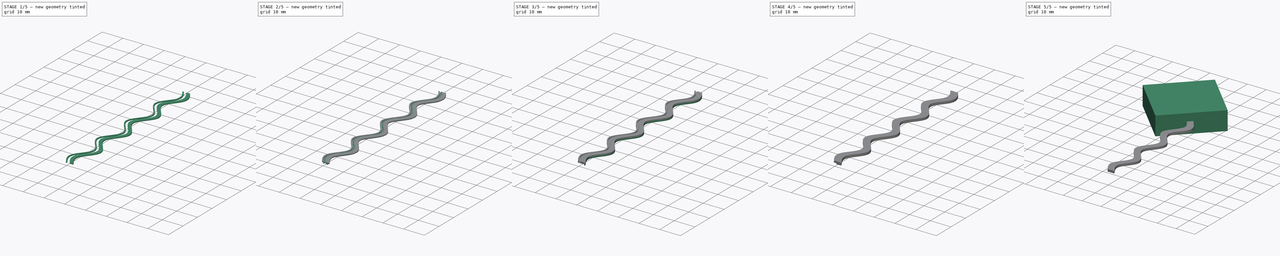
[diagram: build sequence overview — one tinted view per stage of 5, left to right]
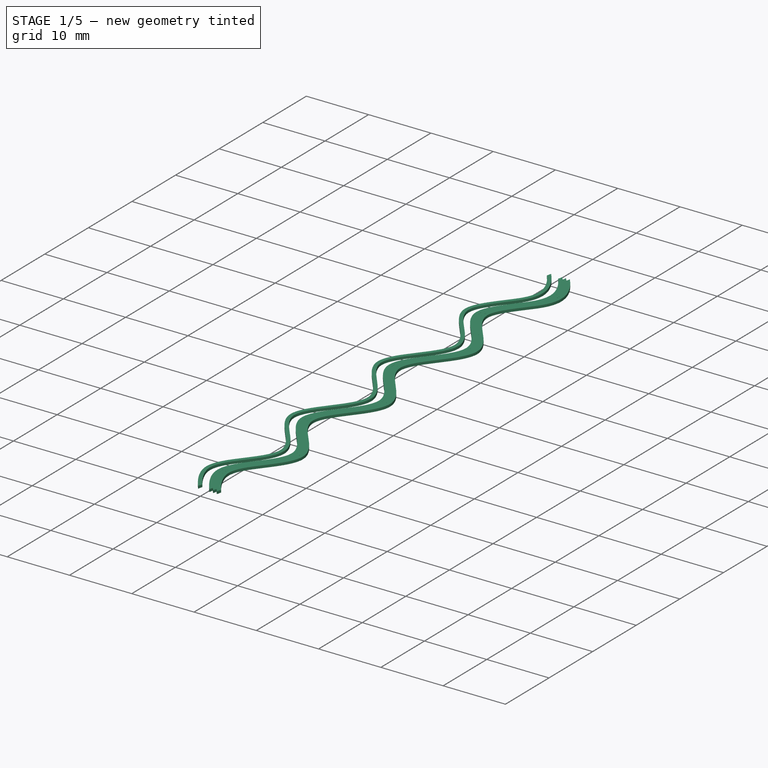
[diagram: stage 1 of 5 — iso view after this stage's code; geometry added in this stage tinted green]
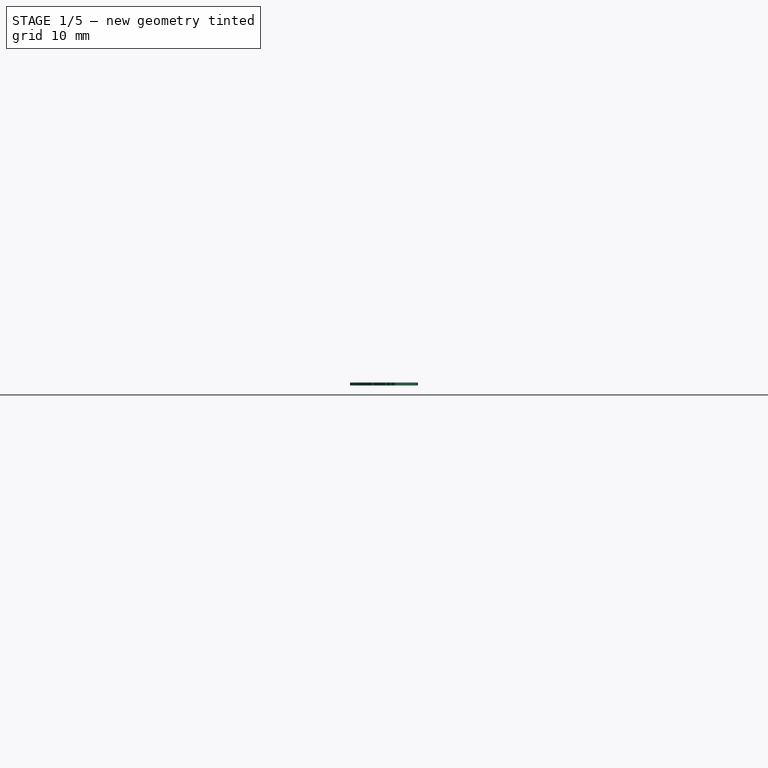
[diagram: stage 1 of 5 — front view after this stage's code; geometry added in this stage tinted green]
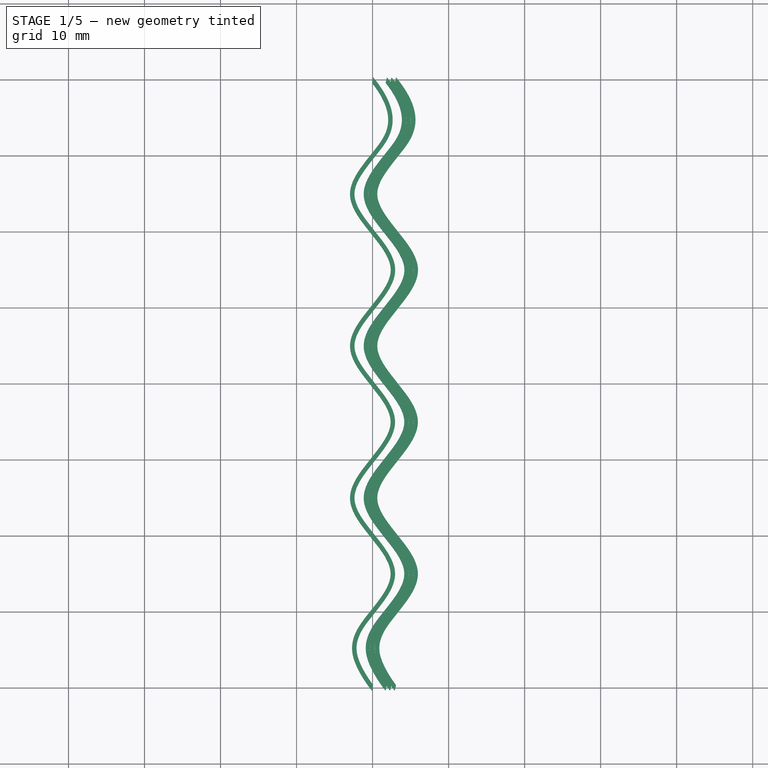
[diagram: stage 1 of 5 — top view after this stage's code; geometry added in this stage tinted green]
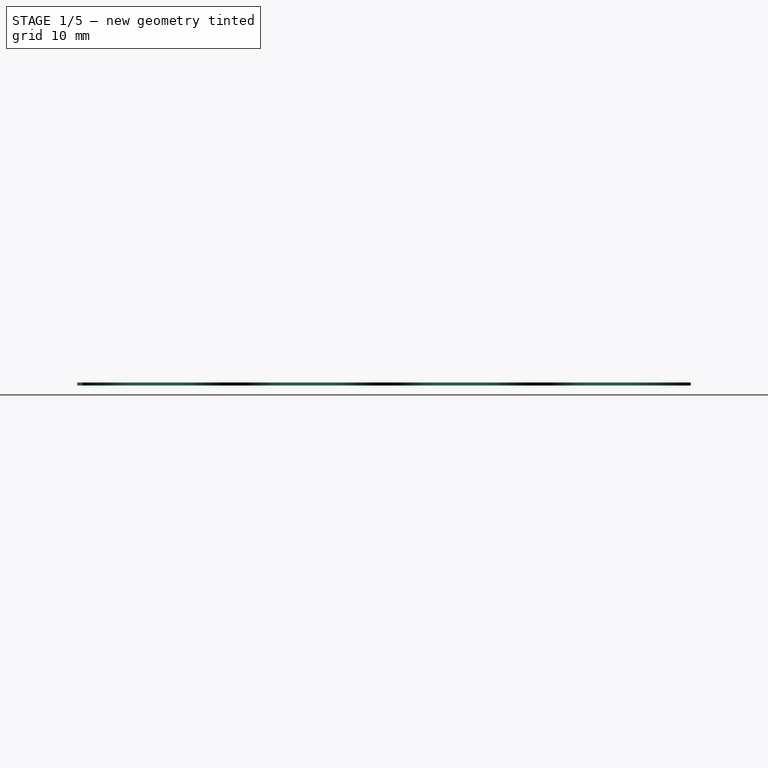
[diagram: stage 1 of 5 — right view after this stage's code; geometry added in this stage tinted green]
FCSTD DOCUMENT  (FreeCAD 0.19R24291 (Git))
Label: Sigmoide
License: All rights reserved
LicenseURL: http://en.wikipedia.org/wiki/All_rights_reserved
objects: Sketcher::SketchObject×36, Part::Sweep×18, Part::Refine×18, Part::Box×1, Part::Compound×1
note: 74 computed .brp shape members not serialized (recipe doc carries the construction recipe); baked Part::Feature solids carry a one-line shape summary decoded from their .brp

FEATURE [Part::Sweep] Sweep013
  Frenet = false
  Placement = pos=(0,0,0.8) rot=(0,0,1;0rad)
  Sections = -> [Sketch026]
  Solid = true
  Spine = -> Sketch035
  Transition = 1
FEATURE [Part::Sweep] Sweep014
  Frenet = false
  Placement = pos=(3,0,0.8) rot=(0,0,1;0rad)
  Sections = -> [Sketch036]
  Solid = true
  Spine = -> Sketch033
  Transition = 1
FEATURE [Part::Sweep] Sweep015
  Frenet = false
  Placement = pos=(1.8,0,0.8) rot=(0,0,1;0rad)
  Sections = -> [Sketch031]
  Solid = true
  Spine = -> Sketch032
  Transition = 1
FEATURE [Part::Sweep] Sweep016
  Frenet = false
  Placement = pos=(2.4,0,0.8) rot=(0,0,1;0rad)
  Sections = -> [Sketch034]
  Solid = true
  Spine = -> Sketch037
  Transition = 1
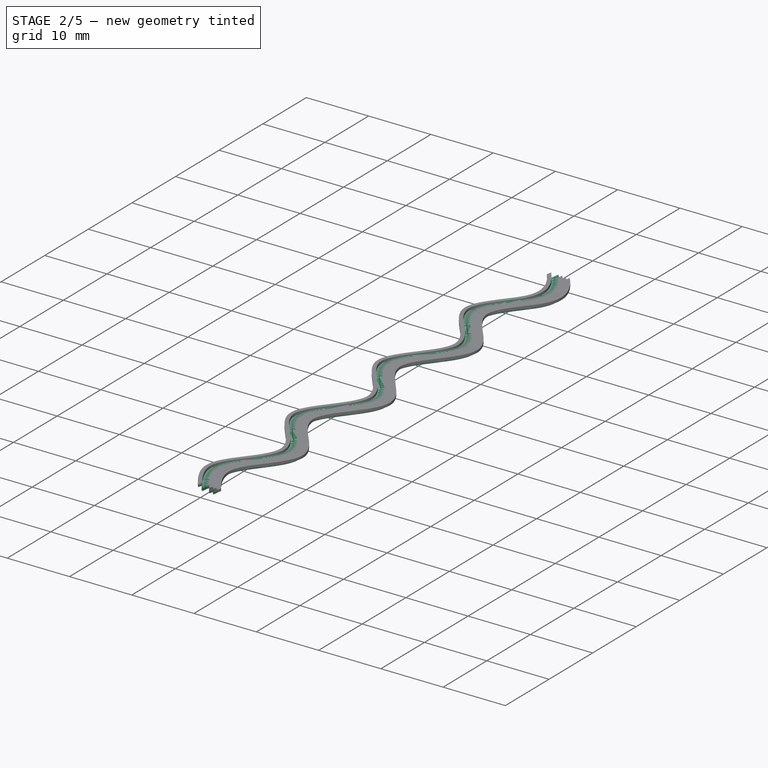
[diagram: stage 2 of 5 — iso view after this stage's code; geometry added in this stage tinted green]
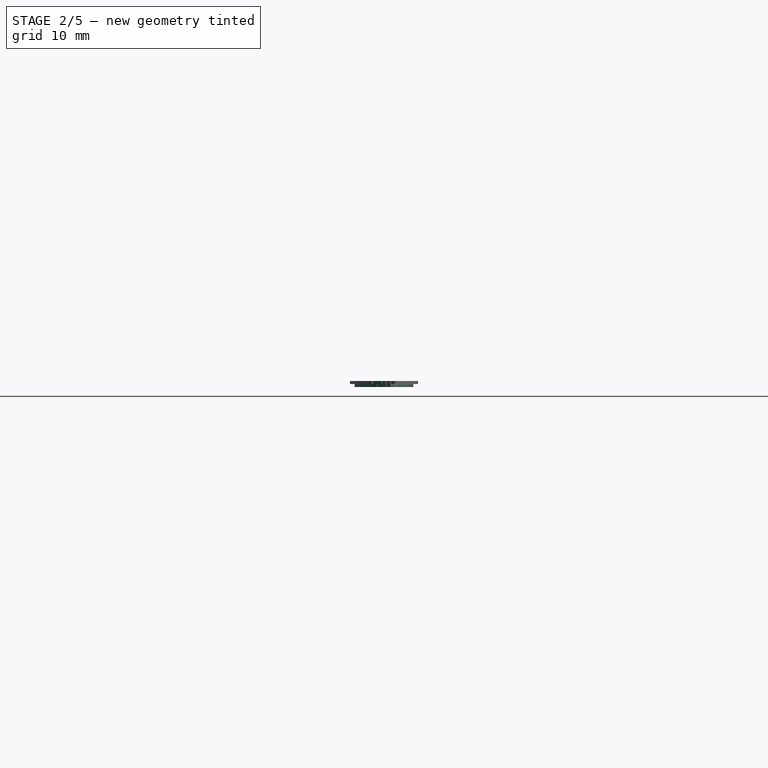
[diagram: stage 2 of 5 — front view after this stage's code; geometry added in this stage tinted green]
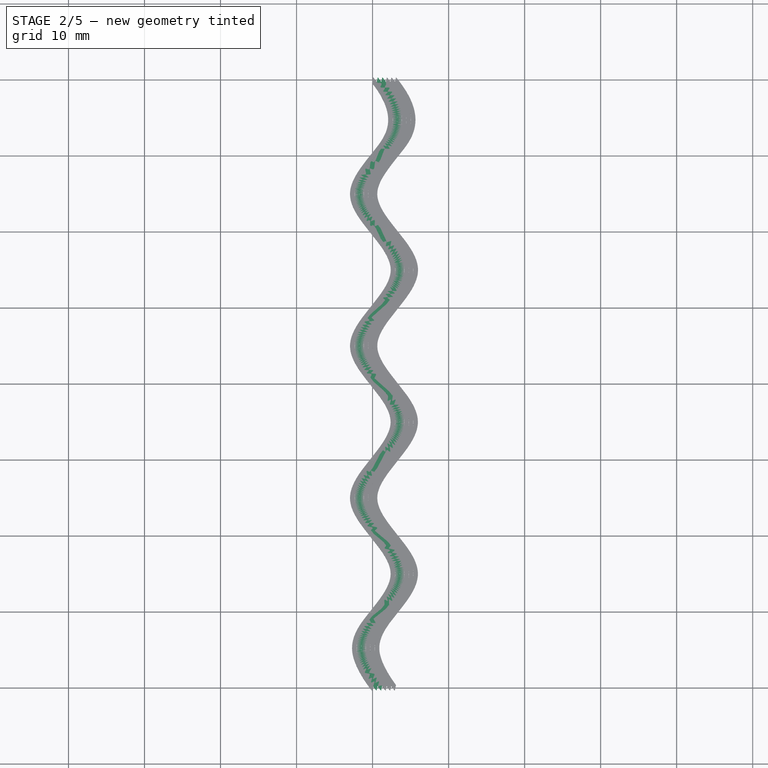
[diagram: stage 2 of 5 — top view after this stage's code; geometry added in this stage tinted green]
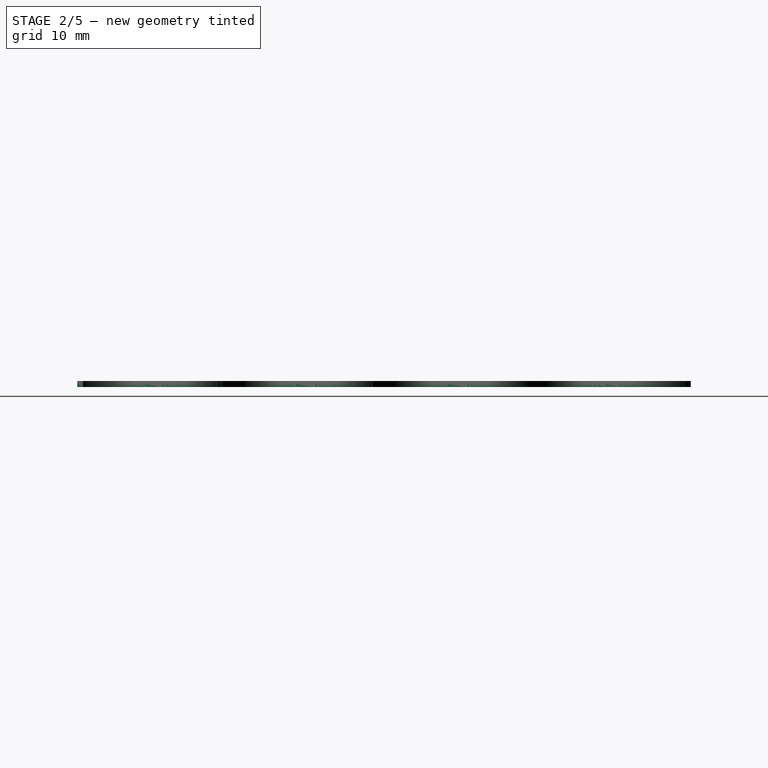
[diagram: stage 2 of 5 — right view after this stage's code; geometry added in this stage tinted green]
FEATURE [Part::Sweep] Sweep009
  Frenet = false
  Placement = pos=(1.8,0,0.4) rot=(0,0,1;0rad)
  Sections = -> [Sketch019]
  Solid = true
  Spine = -> Sketch020
  Transition = 1
FEATURE [Part::Sweep] Sweep010
  Frenet = false
  Placement = pos=(2.4,0,0.4) rot=(0,0,1;0rad)
  Sections = -> [Sketch022]
  Solid = true
  Spine = -> Sketch025
  Transition = 1
FEATURE [Part::Sweep] Sweep011
  Frenet = false
  Placement = pos=(0.6,0,0.4) rot=(0,0,1;0rad)
  Sections = -> [Sketch015]
  Solid = true
  Spine = -> Sketch016
  Transition = 1
FEATURE [Sketcher::SketchObject] Sketch028  label="Sigmoid012"
  FullyConstrained = false
  Placement = pos=(0,30,0) rot=(0,0,1;0rad)
  sketch-geometry (35):
    g0-g17: Circle x18 (B-spline internal-alignment scaffolding for g18; pole/knot coordinates omitted)
    g18: BSplineCurve PolesCount=18 KnotsCount=16 Degree=3 IsPeriodic=0
    g19-g34: GeomPoint x16 (B-spline internal-alignment scaffolding for g18; pole/knot coordinates omitted)
  constraints (29):
    c: PointOnObject(g18,g-2)
    c: Weight(g0) = 1
    c: Equal(g0,g1)
    c: Equal(g0,g2)
    c: PointOnObject(g2,g-2)
    c: Equal(g0,g3)
    c: Equal(g0,g4)
    c: PointOnObject(g4,g-2)
    c: Equal(g0,g5)
    c: Equal(g0,g6)
    c: PointOnObject(g6,g-2)
    c: Equal(g0,g7)
    c: Equal(g0,g8)
    c: PointOnObject(g8,g-2)
    c: Equal(g0,g9)
    c: Equal(g0,g10)
    c: Coincident(g10,g-1)
    c: Equal(g0,g11)
    c: Equal(g0,g12)
    c: PointOnObject(g12,g-2)
    c: Equal(g0,g13)
    c: Equal(g0,g14)
    c: PointOnObject(g14,g-2)
    c: Equal(g0,g15)
    c: Equal(g0,g16)
    c: PointOnObject(g16,g-2)
    c: Equal(g0,g17)
    c: InternalAlignment(g0-g17 -> g18) x18
    c: InternalAlignment(g19-g34 -> g18) x16
FEATURE [Sketcher::SketchObject] Sketch027
  FullyConstrained = false
  MapMode = 3
  Placement = pos=(0,30,0) rot=(1,0,0;1.5708rad)
  Support = -> [Sketch028]
  sketch-geometry (4):
    g0: LineSegment StartX=-0.368605 StartY=0.202548 StartZ=0 EndX=0.387788 EndY=0.202548 EndZ=0
    g1: LineSegment StartX=0.387788 StartY=0.202548 StartZ=0 EndX=0.387788 EndY=-0.196091 EndZ=0
    g2: LineSegment StartX=0.387788 StartY=-0.196091 StartZ=0 EndX=-0.368605 EndY=-0.196091 EndZ=0
    g3: LineSegment StartX=-0.368605 StartY=-0.196091 StartZ=0 EndX=-0.368605 EndY=0.202548 EndZ=0
  constraints (8):
    c: Coincident(g0,g1)
    c: Coincident(g1,g2)
    c: Coincident(g2,g3)
    c: Coincident(g3,g0)
    c: Horizontal(g0)
    c: Horizontal(g2)
    c: Vertical(g1)
    c: Vertical(g3)
FEATURE [Sketcher::SketchObject] Sketch030  label="Sigmoid013"
  FullyConstrained = false
  Placement = pos=(0,30,0) rot=(0,0,1;0rad)
  sketch-geometry (35):
    g0-g17: Circle x18 (B-spline internal-alignment scaffolding for g18; pole/knot coordinates omitted)
    g18: BSplineCurve PolesCount=18 KnotsCount=16 Degree=3 IsPeriodic=0
    g19-g34: GeomPoint x16 (B-spline internal-alignment scaffolding for g18; pole/knot coordinates omitted)
  constraints (29):
    c: PointOnObject(g18,g-2)
    c: Weight(g0) = 1
    c: Equal(g0,g1)
    c: Equal(g0,g2)
    c: PointOnObject(g2,g-2)
    c: Equal(g0,g3)
    c: Equal(g0,g4)
    c: PointOnObject(g4,g-2)
    c: Equal(g0,g5)
    c: Equal(g0,g6)
    c: PointOnObject(g6,g-2)
    c: Equal(g0,g7)
    c: Equal(g0,g8)
    c: PointOnObject(g8,g-2)
    c: Equal(g0,g9)
    c: Equal(g0,g10)
    c: Coincident(g10,g-1)
    c: Equal(g0,g11)
    c: Equal(g0,g12)
    c: PointOnObject(g12,g-2)
    c: Equal(g0,g13)
    c: Equal(g0,g14)
    c: PointOnObject(g14,g-2)
    c: Equal(g0,g15)
    c: Equal(g0,g16)
    c: PointOnObject(g16,g-2)
    c: Equal(g0,g17)
    c: InternalAlignment(g0-g17 -> g18) x18
    c: InternalAlignment(g19-g34 -> g18) x16
FEATURE [Sketcher::SketchObject] Sketch029
  FullyConstrained = false
  MapMode = 3
  Placement = pos=(0,30,0) rot=(1,0,0;1.5708rad)
  Support = -> [Sketch030]
  sketch-geometry (4):
    g0: LineSegment StartX=-0.368605 StartY=0.202548 StartZ=0 EndX=0.387788 EndY=0.202548 EndZ=0
    g1: LineSegment StartX=0.387788 StartY=0.202548 StartZ=0 EndX=0.387788 EndY=-0.196091 EndZ=0
    g2: LineSegment StartX=0.387788 StartY=-0.196091 StartZ=0 EndX=-0.368605 EndY=-0.196091 EndZ=0
    g3: LineSegment StartX=-0.368605 StartY=-0.196091 StartZ=0 EndX=-0.368605 EndY=0.202548 EndZ=0
  constraints (8):
    c: Coincident(g0,g1)
    c: Coincident(g1,g2)
    c: Coincident(g2,g3)
    c: Coincident(g3,g0)
    c: Horizontal(g0)
    c: Horizontal(g2)
    c: Vertical(g1)
    c: Vertical(g3)
FEATURE [Sketcher::SketchObject] Sketch032  label="Sigmoid014"
  FullyConstrained = false
  Placement = pos=(0,30,0) rot=(0,0,1;0rad)
  sketch-geometry (35):
    g0-g17: Circle x18 (B-spline internal-alignment scaffolding for g18; pole/knot coordinates omitted)
    g18: BSplineCurve PolesCount=18 KnotsCount=16 Degree=3 IsPeriodic=0
    g19-g34: GeomPoint x16 (B-spline internal-alignment scaffolding for g18; pole/knot coordinates omitted)
  constraints (29):
    c: PointOnObject(g18,g-2)
    c: Weight(g0) = 1
    c: Equal(g0,g1)
    c: Equal(g0,g2)
    c: PointOnObject(g2,g-2)
    c: Equal(g0,g3)
    c: Equal(g0,g4)
    c: PointOnObject(g4,g-2)
    c: Equal(g0,g5)
    c: Equal(g0,g6)
    c: PointOnObject(g6,g-2)
    c: Equal(g0,g7)
    c: Equal(g0,g8)
    c: PointOnObject(g8,g-2)
    c: Equal(g0,g9)
    c: Equal(g0,g10)
    c: Coincident(g10,g-1)
    c: Equal(g0,g11)
    c: Equal(g0,g12)
    c: PointOnObject(g12,g-2)
    c: Equal(g0,g13)
    c: Equal(g0,g14)
    c: PointOnObject(g14,g-2)
    c: Equal(g0,g15)
    c: Equal(g0,g16)
    c: PointOnObject(g16,g-2)
    c: Equal(g0,g17)
    c: InternalAlignment(g0-g17 -> g18) x18
    c: InternalAlignment(g19-g34 -> g18) x16
FEATURE [Sketcher::SketchObject] Sketch031
  FullyConstrained = false
  MapMode = 3
  Placement = pos=(0,30,0) rot=(1,0,0;1.5708rad)
  Support = -> [Sketch032]
  sketch-geometry (4):
    g0: LineSegment StartX=-0.368605 StartY=0.202548 StartZ=0 EndX=0.387788 EndY=0.202548 EndZ=0
    g1: LineSegment StartX=0.387788 StartY=0.202548 StartZ=0 EndX=0.387788 EndY=-0.196091 EndZ=0
    g2: LineSegment StartX=0.387788 StartY=-0.196091 StartZ=0 EndX=-0.368605 EndY=-0.196091 EndZ=0
    g3: LineSegment StartX=-0.368605 StartY=-0.196091 StartZ=0 EndX=-0.368605 EndY=0.202548 EndZ=0
  constraints (8):
    c: Coincident(g0,g1)
    c: Coincident(g1,g2)
    c: Coincident(g2,g3)
    c: Coincident(g3,g0)
    c: Horizontal(g0)
    c: Horizontal(g2)
    c: Vertical(g1)
    c: Vertical(g3)
FEATURE [Sketcher::SketchObject] Sketch033  label="Sigmoid015"
  FullyConstrained = false
  Placement = pos=(0,30,0) rot=(0,0,1;0rad)
  sketch-geometry (35):
    g0-g17: Circle x18 (B-spline internal-alignment scaffolding for g18; pole/knot coordinates omitted)
    g18: BSplineCurve PolesCount=18 KnotsCount=16 Degree=3 IsPeriodic=0
    g19-g34: GeomPoint x16 (B-spline internal-alignment scaffolding for g18; pole/knot coordinates omitted)
  constraints (29):
    c: PointOnObject(g18,g-2)
    c: Weight(g0) = 1
    c: Equal(g0,g1)
    c: Equal(g0,g2)
    c: PointOnObject(g2,g-2)
    c: Equal(g0,g3)
    c: Equal(g0,g4)
    c: PointOnObject(g4,g-2)
    c: Equal(g0,g5)
    c: Equal(g0,g6)
    c: PointOnObject(g6,g-2)
    c: Equal(g0,g7)
    c: Equal(g0,g8)
    c: PointOnObject(g8,g-2)
    c: Equal(g0,g9)
    c: Equal(g0,g10)
    c: Coincident(g10,g-1)
    c: Equal(g0,g11)
    c: Equal(g0,g12)
    c: PointOnObject(g12,g-2)
    c: Equal(g0,g13)
    c: Equal(g0,g14)
    c: PointOnObject(g14,g-2)
    c: Equal(g0,g15)
    c: Equal(g0,g16)
    c: PointOnObject(g16,g-2)
    c: Equal(g0,g17)
    c: InternalAlignment(g0-g17 -> g18) x18
    c: InternalAlignment(g19-g34 -> g18) x16
FEATURE [Sketcher::SketchObject] Sketch035  label="Sigmoid016"
  FullyConstrained = false
  Placement = pos=(0,30,0) rot=(0,0,1;0rad)
  sketch-geometry (35):
    g0-g17: Circle x18 (B-spline internal-alignment scaffolding for g18; pole/knot coordinates omitted)
    g18: BSplineCurve PolesCount=18 KnotsCount=16 Degree=3 IsPeriodic=0
    g19-g34: GeomPoint x16 (B-spline internal-alignment scaffolding for g18; pole/knot coordinates omitted)
  constraints (29):
    c: PointOnObject(g18,g-2)
    c: Weight(g0) = 1
    c: Equal(g0,g1)
    c: Equal(g0,g2)
    c: PointOnObject(g2,g-2)
    c: Equal(g0,g3)
    c: Equal(g0,g4)
    c: PointOnObject(g4,g-2)
    c: Equal(g0,g5)
    c: Equal(g0,g6)
    c: PointOnObject(g6,g-2)
    c: Equal(g0,g7)
    c: Equal(g0,g8)
    c: PointOnObject(g8,g-2)
    c: Equal(g0,g9)
    c: Equal(g0,g10)
    c: Coincident(g10,g-1)
    c: Equal(g0,g11)
    c: Equal(g0,g12)
    c: PointOnObject(g12,g-2)
    c: Equal(g0,g13)
    c: Equal(g0,g14)
    c: PointOnObject(g14,g-2)
    c: Equal(g0,g15)
    c: Equal(g0,g16)
    c: PointOnObject(g16,g-2)
    c: Equal(g0,g17)
    c: InternalAlignment(g0-g17 -> g18) x18
    c: InternalAlignment(g19-g34 -> g18) x16
FEATURE [Sketcher::SketchObject] Sketch026
  FullyConstrained = false
  MapMode = 3
  Placement = pos=(0,30,0) rot=(1,0,0;1.5708rad)
  Support = -> [Sketch035]
  sketch-geometry (4):
    g0: LineSegment StartX=-0.368605 StartY=0.202548 StartZ=0 EndX=0.387788 EndY=0.202548 EndZ=0
    g1: LineSegment StartX=0.387788 StartY=0.202548 StartZ=0 EndX=0.387788 EndY=-0.196091 EndZ=0
    g2: LineSegment StartX=0.387788 StartY=-0.196091 StartZ=0 EndX=-0.368605 EndY=-0.196091 EndZ=0
    g3: LineSegment StartX=-0.368605 StartY=-0.196091 StartZ=0 EndX=-0.368605 EndY=0.202548 EndZ=0
  constraints (8):
    c: Coincident(g0,g1)
    c: Coincident(g1,g2)
    c: Coincident(g2,g3)
    c: Coincident(g3,g0)
    c: Horizontal(g0)
    c: Horizontal(g2)
    c: Vertical(g1)
    c: Vertical(g3)
FEATURE [Sketcher::SketchObject] Sketch036
  FullyConstrained = false
  MapMode = 3
  Placement = pos=(0,30,0) rot=(1,0,0;1.5708rad)
  Support = -> [Sketch033]
  sketch-geometry (4):
    g0: LineSegment StartX=-0.368605 StartY=0.202548 StartZ=0 EndX=0.387788 EndY=0.202548 EndZ=0
    g1: LineSegment StartX=0.387788 StartY=0.202548 StartZ=0 EndX=0.387788 EndY=-0.196091 EndZ=0
    g2: LineSegment StartX=0.387788 StartY=-0.196091 StartZ=0 EndX=-0.368605 EndY=-0.196091 EndZ=0
    g3: LineSegment StartX=-0.368605 StartY=-0.196091 StartZ=0 EndX=-0.368605 EndY=0.202548 EndZ=0
  constraints (8):
    c: Coincident(g0,g1)
    c: Coincident(g1,g2)
    c: Coincident(g2,g3)
    c: Coincident(g3,g0)
    c: Horizontal(g0)
    c: Horizontal(g2)
    c: Vertical(g1)
    c: Vertical(g3)
FEATURE [Sketcher::SketchObject] Sketch037  label="Sigmoid017"
  FullyConstrained = false
  Placement = pos=(0,30,0) rot=(0,0,1;0rad)
  sketch-geometry (35):
    g0-g17: Circle x18 (B-spline internal-alignment scaffolding for g18; pole/knot coordinates omitted)
    g18: BSplineCurve PolesCount=18 KnotsCount=16 Degree=3 IsPeriodic=0
    g19-g34: GeomPoint x16 (B-spline internal-alignment scaffolding for g18; pole/knot coordinates omitted)
  constraints (29):
    c: PointOnObject(g18,g-2)
    c: Weight(g0) = 1
    c: Equal(g0,g1)
    c: Equal(g0,g2)
    c: PointOnObject(g2,g-2)
    c: Equal(g0,g3)
    c: Equal(g0,g4)
    c: PointOnObject(g4,g-2)
    c: Equal(g0,g5)
    c: Equal(g0,g6)
    c: PointOnObject(g6,g-2)
    c: Equal(g0,g7)
    c: Equal(g0,g8)
    c: PointOnObject(g8,g-2)
    c: Equal(g0,g9)
    c: Equal(g0,g10)
    c: Coincident(g10,g-1)
    c: Equal(g0,g11)
    c: Equal(g0,g12)
    c: PointOnObject(g12,g-2)
    c: Equal(g0,g13)
    c: Equal(g0,g14)
    c: PointOnObject(g14,g-2)
    c: Equal(g0,g15)
    c: Equal(g0,g16)
    c: PointOnObject(g16,g-2)
    c: Equal(g0,g17)
    c: InternalAlignment(g0-g17 -> g18) x18
    c: InternalAlignment(g19-g34 -> g18) x16
FEATURE [Sketcher::SketchObject] Sketch034
  FullyConstrained = false
  MapMode = 3
  Placement = pos=(0,30,0) rot=(1,0,0;1.5708rad)
  Support = -> [Sketch037]
  sketch-geometry (4):
    g0: LineSegment StartX=-0.368605 StartY=0.202548 StartZ=0 EndX=0.387788 EndY=0.202548 EndZ=0
    g1: LineSegment StartX=0.387788 StartY=0.202548 StartZ=0 EndX=0.387788 EndY=-0.196091 EndZ=0
    g2: LineSegment StartX=0.387788 StartY=-0.196091 StartZ=0 EndX=-0.368605 EndY=-0.196091 EndZ=0
    g3: LineSegment StartX=-0.368605 StartY=-0.196091 StartZ=0 EndX=-0.368605 EndY=0.202548 EndZ=0
  constraints (8):
    c: Coincident(g0,g1)
    c: Coincident(g1,g2)
    c: Coincident(g2,g3)
    c: Coincident(g3,g0)
    c: Horizontal(g0)
    c: Horizontal(g2)
    c: Vertical(g1)
    c: Vertical(g3)
FEATURE [Part::Sweep] Sweep012
  Frenet = false
  Placement = pos=(1.2,0,0.8) rot=(0,0,1;0rad)
  Sections = -> [Sketch029]
  Solid = true
  Spine = -> Sketch030
  Transition = 1
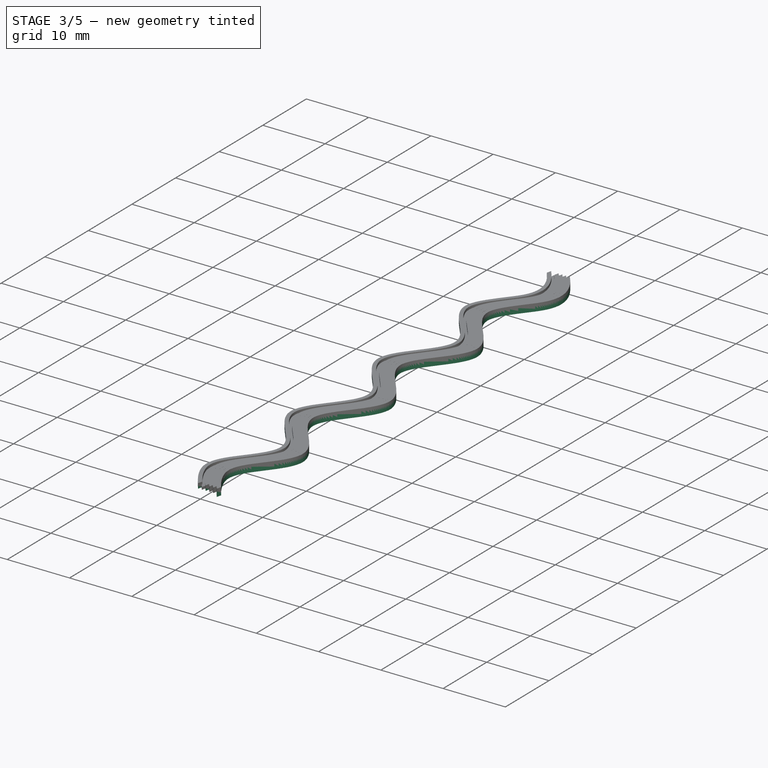
[diagram: stage 3 of 5 — iso view after this stage's code; geometry added in this stage tinted green]
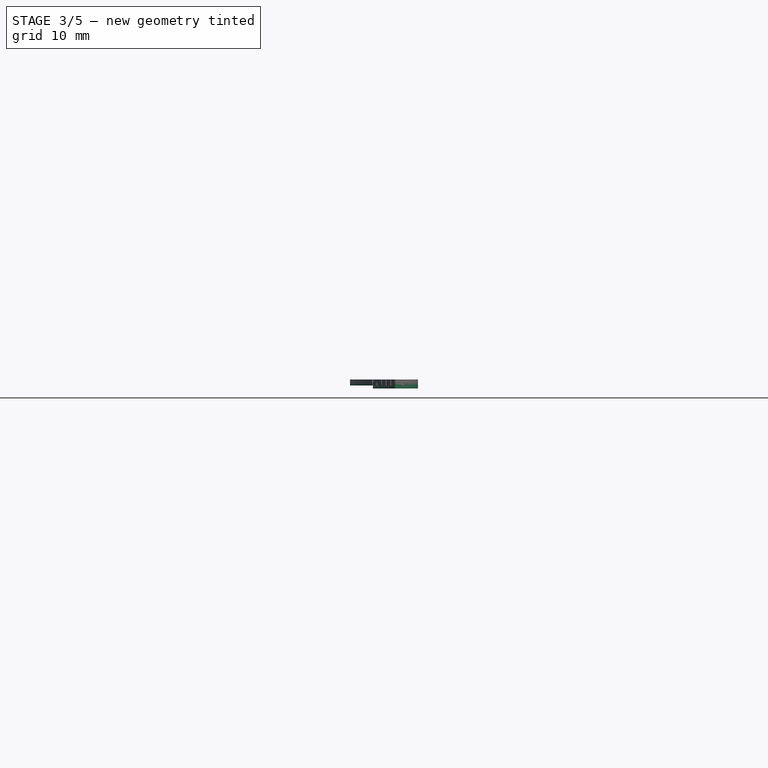
[diagram: stage 3 of 5 — front view after this stage's code; geometry added in this stage tinted green]
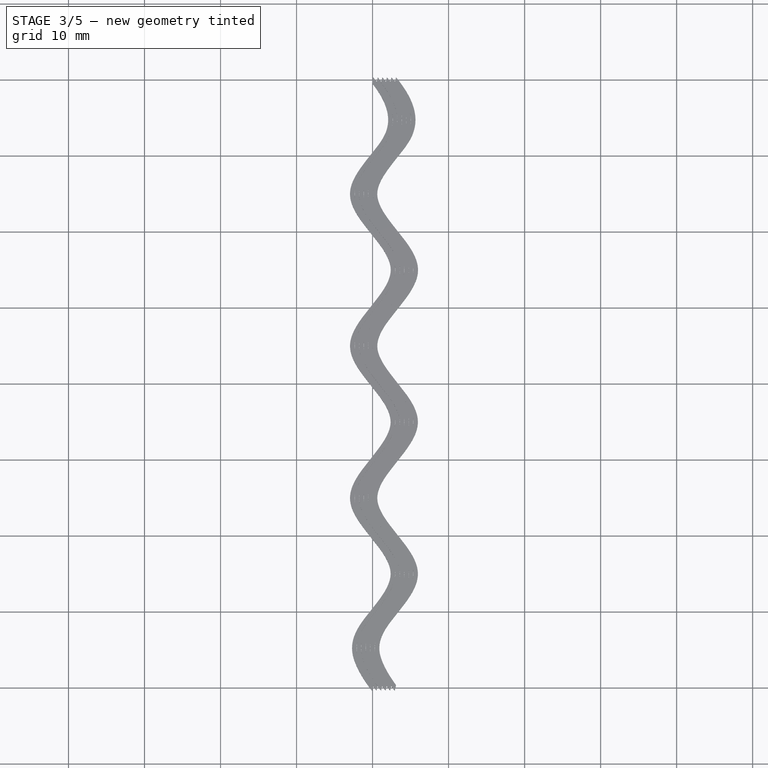
[diagram: stage 3 of 5 — top view after this stage's code; geometry added in this stage tinted green]
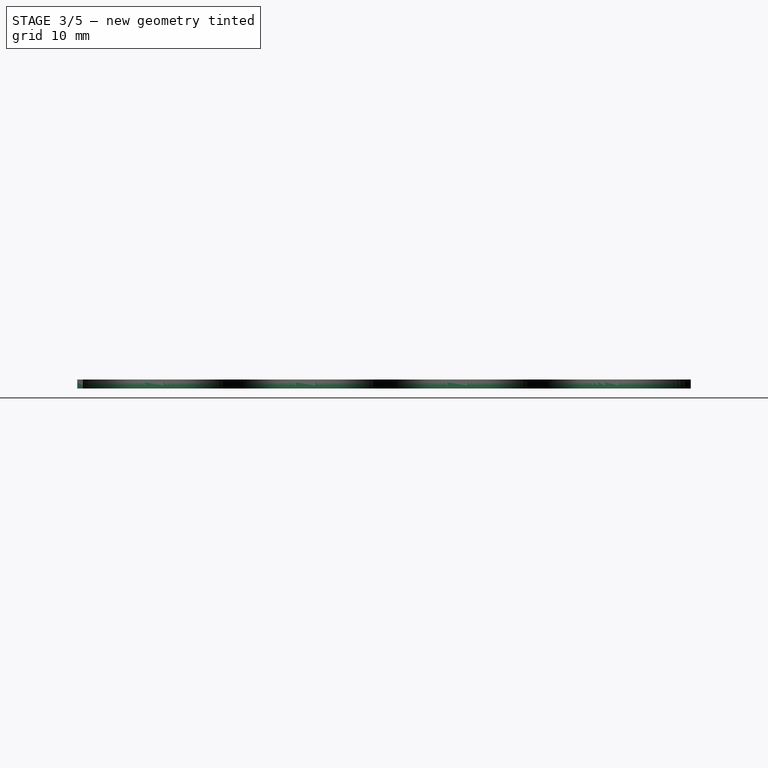
[diagram: stage 3 of 5 — right view after this stage's code; geometry added in this stage tinted green]
FEATURE [Sketcher::SketchObject] Sketch013  label="Sigmoid005"
  FullyConstrained = false
  Placement = pos=(0,30,0) rot=(0,0,1;0rad)
  sketch-geometry (35):
    g0-g17: Circle x18 (B-spline internal-alignment scaffolding for g18; pole/knot coordinates omitted)
    g18: BSplineCurve PolesCount=18 KnotsCount=16 Degree=3 IsPeriodic=0
    g19-g34: GeomPoint x16 (B-spline internal-alignment scaffolding for g18; pole/knot coordinates omitted)
  constraints (29):
    c: PointOnObject(g18,g-2)
    c: Weight(g0) = 1
    c: Equal(g0,g1)
    c: Equal(g0,g2)
    c: PointOnObject(g2,g-2)
    c: Equal(g0,g3)
    c: Equal(g0,g4)
    c: PointOnObject(g4,g-2)
    c: Equal(g0,g5)
    c: Equal(g0,g6)
    c: PointOnObject(g6,g-2)
    c: Equal(g0,g7)
    c: Equal(g0,g8)
    c: PointOnObject(g8,g-2)
    c: Equal(g0,g9)
    c: Equal(g0,g10)
    c: Coincident(g10,g-1)
    c: Equal(g0,g11)
    c: Equal(g0,g12)
    c: PointOnObject(g12,g-2)
    c: Equal(g0,g13)
    c: Equal(g0,g14)
    c: PointOnObject(g14,g-2)
    c: Equal(g0,g15)
    c: Equal(g0,g16)
    c: PointOnObject(g16,g-2)
    c: Equal(g0,g17)
    c: InternalAlignment(g0-g17 -> g18) x18
    c: InternalAlignment(g19-g34 -> g18) x16
FEATURE [Sketcher::SketchObject] Sketch012
  FullyConstrained = false
  MapMode = 3
  Placement = pos=(0,30,0) rot=(1,0,0;1.5708rad)
  Support = -> [Sketch013]
  sketch-geometry (4):
    g0: LineSegment StartX=-0.368605 StartY=0.202548 StartZ=0 EndX=0.387788 EndY=0.202548 EndZ=0
    g1: LineSegment StartX=0.387788 StartY=0.202548 StartZ=0 EndX=0.387788 EndY=-0.196091 EndZ=0
    g2: LineSegment StartX=0.387788 StartY=-0.196091 StartZ=0 EndX=-0.368605 EndY=-0.196091 EndZ=0
    g3: LineSegment StartX=-0.368605 StartY=-0.196091 StartZ=0 EndX=-0.368605 EndY=0.202548 EndZ=0
  constraints (8):
    c: Coincident(g0,g1)
    c: Coincident(g1,g2)
    c: Coincident(g2,g3)
    c: Coincident(g3,g0)
    c: Horizontal(g0)
    c: Horizontal(g2)
    c: Vertical(g1)
    c: Vertical(g3)
FEATURE [Part::Sweep] Sweep005
  Frenet = false
  Placement = pos=(3,0,0) rot=(0,0,1;0rad)
  Sections = -> [Sketch012]
  Solid = true
  Spine = -> Sketch013
  Transition = 1
FEATURE [Sketcher::SketchObject] Sketch016  label="Sigmoid006"
  FullyConstrained = false
  Placement = pos=(0,30,0) rot=(0,0,1;0rad)
  sketch-geometry (35):
    g0-g17: Circle x18 (B-spline internal-alignment scaffolding for g18; pole/knot coordinates omitted)
    g18: BSplineCurve PolesCount=18 KnotsCount=16 Degree=3 IsPeriodic=0
    g19-g34: GeomPoint x16 (B-spline internal-alignment scaffolding for g18; pole/knot coordinates omitted)
  constraints (29):
    c: PointOnObject(g18,g-2)
    c: Weight(g0) = 1
    c: Equal(g0,g1)
    c: Equal(g0,g2)
    c: PointOnObject(g2,g-2)
    c: Equal(g0,g3)
    c: Equal(g0,g4)
    c: PointOnObject(g4,g-2)
    c: Equal(g0,g5)
    c: Equal(g0,g6)
    c: PointOnObject(g6,g-2)
    c: Equal(g0,g7)
    c: Equal(g0,g8)
    c: PointOnObject(g8,g-2)
    c: Equal(g0,g9)
    c: Equal(g0,g10)
    c: Coincident(g10,g-1)
    c: Equal(g0,g11)
    c: Equal(g0,g12)
    c: PointOnObject(g12,g-2)
    c: Equal(g0,g13)
    c: Equal(g0,g14)
    c: PointOnObject(g14,g-2)
    c: Equal(g0,g15)
    c: Equal(g0,g16)
    c: PointOnObject(g16,g-2)
    c: Equal(g0,g17)
    c: InternalAlignment(g0-g17 -> g18) x18
    c: InternalAlignment(g19-g34 -> g18) x16
FEATURE [Sketcher::SketchObject] Sketch015
  FullyConstrained = false
  MapMode = 3
  Placement = pos=(0,30,0) rot=(1,0,0;1.5708rad)
  Support = -> [Sketch016]
  sketch-geometry (4):
    g0: LineSegment StartX=-0.368605 StartY=0.202548 StartZ=0 EndX=0.387788 EndY=0.202548 EndZ=0
    g1: LineSegment StartX=0.387788 StartY=0.202548 StartZ=0 EndX=0.387788 EndY=-0.196091 EndZ=0
    g2: LineSegment StartX=0.387788 StartY=-0.196091 StartZ=0 EndX=-0.368605 EndY=-0.196091 EndZ=0
    g3: LineSegment StartX=-0.368605 StartY=-0.196091 StartZ=0 EndX=-0.368605 EndY=0.202548 EndZ=0
  constraints (8):
    c: Coincident(g0,g1)
    c: Coincident(g1,g2)
    c: Coincident(g2,g3)
    c: Coincident(g3,g0)
    c: Horizontal(g0)
    c: Horizontal(g2)
    c: Vertical(g1)
    c: Vertical(g3)
FEATURE [Sketcher::SketchObject] Sketch018  label="Sigmoid007"
  FullyConstrained = false
  Placement = pos=(0,30,0) rot=(0,0,1;0rad)
  sketch-geometry (35):
    g0-g17: Circle x18 (B-spline internal-alignment scaffolding for g18; pole/knot coordinates omitted)
    g18: BSplineCurve PolesCount=18 KnotsCount=16 Degree=3 IsPeriodic=0
    g19-g34: GeomPoint x16 (B-spline internal-alignment scaffolding for g18; pole/knot coordinates omitted)
  constraints (29):
    c: PointOnObject(g18,g-2)
    c: Weight(g0) = 1
    c: Equal(g0,g1)
    c: Equal(g0,g2)
    c: PointOnObject(g2,g-2)
    c: Equal(g0,g3)
    c: Equal(g0,g4)
    c: PointOnObject(g4,g-2)
    c: Equal(g0,g5)
    c: Equal(g0,g6)
    c: PointOnObject(g6,g-2)
    c: Equal(g0,g7)
    c: Equal(g0,g8)
    c: PointOnObject(g8,g-2)
    c: Equal(g0,g9)
    c: Equal(g0,g10)
    c: Coincident(g10,g-1)
    c: Equal(g0,g11)
    c: Equal(g0,g12)
    c: PointOnObject(g12,g-2)
    c: Equal(g0,g13)
    c: Equal(g0,g14)
    c: PointOnObject(g14,g-2)
    c: Equal(g0,g15)
    c: Equal(g0,g16)
    c: PointOnObject(g16,g-2)
    c: Equal(g0,g17)
    c: InternalAlignment(g0-g17 -> g18) x18
    c: InternalAlignment(g19-g34 -> g18) x16
FEATURE [Sketcher::SketchObject] Sketch017
  FullyConstrained = false
  MapMode = 3
  Placement = pos=(0,30,0) rot=(1,0,0;1.5708rad)
  Support = -> [Sketch018]
  sketch-geometry (4):
    g0: LineSegment StartX=-0.368605 StartY=0.202548 StartZ=0 EndX=0.387788 EndY=0.202548 EndZ=0
    g1: LineSegment StartX=0.387788 StartY=0.202548 StartZ=0 EndX=0.387788 EndY=-0.196091 EndZ=0
    g2: LineSegment StartX=0.387788 StartY=-0.196091 StartZ=0 EndX=-0.368605 EndY=-0.196091 EndZ=0
    g3: LineSegment StartX=-0.368605 StartY=-0.196091 StartZ=0 EndX=-0.368605 EndY=0.202548 EndZ=0
  constraints (8):
    c: Coincident(g0,g1)
    c: Coincident(g1,g2)
    c: Coincident(g2,g3)
    c: Coincident(g3,g0)
    c: Horizontal(g0)
    c: Horizontal(g2)
    c: Vertical(g1)
    c: Vertical(g3)
FEATURE [Sketcher::SketchObject] Sketch020  label="Sigmoid008"
  FullyConstrained = false
  Placement = pos=(0,30,0) rot=(0,0,1;0rad)
  sketch-geometry (35):
    g0-g17: Circle x18 (B-spline internal-alignment scaffolding for g18; pole/knot coordinates omitted)
    g18: BSplineCurve PolesCount=18 KnotsCount=16 Degree=3 IsPeriodic=0
    g19-g34: GeomPoint x16 (B-spline internal-alignment scaffolding for g18; pole/knot coordinates omitted)
  constraints (29):
    c: PointOnObject(g18,g-2)
    c: Weight(g0) = 1
    c: Equal(g0,g1)
    c: Equal(g0,g2)
    c: PointOnObject(g2,g-2)
    c: Equal(g0,g3)
    c: Equal(g0,g4)
    c: PointOnObject(g4,g-2)
    c: Equal(g0,g5)
    c: Equal(g0,g6)
    c: PointOnObject(g6,g-2)
    c: Equal(g0,g7)
    c: Equal(g0,g8)
    c: PointOnObject(g8,g-2)
    c: Equal(g0,g9)
    c: Equal(g0,g10)
    c: Coincident(g10,g-1)
    c: Equal(g0,g11)
    c: Equal(g0,g12)
    c: PointOnObject(g12,g-2)
    c: Equal(g0,g13)
    c: Equal(g0,g14)
    c: PointOnObject(g14,g-2)
    c: Equal(g0,g15)
    c: Equal(g0,g16)
    c: PointOnObject(g16,g-2)
    c: Equal(g0,g17)
    c: InternalAlignment(g0-g17 -> g18) x18
    c: InternalAlignment(g19-g34 -> g18) x16
FEATURE [Sketcher::SketchObject] Sketch019
  FullyConstrained = false
  MapMode = 3
  Placement = pos=(0,30,0) rot=(1,0,0;1.5708rad)
  Support = -> [Sketch020]
  sketch-geometry (4):
    g0: LineSegment StartX=-0.368605 StartY=0.202548 StartZ=0 EndX=0.387788 EndY=0.202548 EndZ=0
    g1: LineSegment StartX=0.387788 StartY=0.202548 StartZ=0 EndX=0.387788 EndY=-0.196091 EndZ=0
    g2: LineSegment StartX=0.387788 StartY=-0.196091 StartZ=0 EndX=-0.368605 EndY=-0.196091 EndZ=0
    g3: LineSegment StartX=-0.368605 StartY=-0.196091 StartZ=0 EndX=-0.368605 EndY=0.202548 EndZ=0
  constraints (8):
    c: Coincident(g0,g1)
    c: Coincident(g1,g2)
    c: Coincident(g2,g3)
    c: Coincident(g3,g0)
    c: Horizontal(g0)
    c: Horizontal(g2)
    c: Vertical(g1)
    c: Vertical(g3)
FEATURE [Sketcher::SketchObject] Sketch021  label="Sigmoid009"
  FullyConstrained = false
  Placement = pos=(0,30,0) rot=(0,0,1;0rad)
  sketch-geometry (35):
    g0-g17: Circle x18 (B-spline internal-alignment scaffolding for g18; pole/knot coordinates omitted)
    g18: BSplineCurve PolesCount=18 KnotsCount=16 Degree=3 IsPeriodic=0
    g19-g34: GeomPoint x16 (B-spline internal-alignment scaffolding for g18; pole/knot coordinates omitted)
  constraints (29):
    c: PointOnObject(g18,g-2)
    c: Weight(g0) = 1
    c: Equal(g0,g1)
    c: Equal(g0,g2)
    c: PointOnObject(g2,g-2)
    c: Equal(g0,g3)
    c: Equal(g0,g4)
    c: PointOnObject(g4,g-2)
    c: Equal(g0,g5)
    c: Equal(g0,g6)
    c: PointOnObject(g6,g-2)
    c: Equal(g0,g7)
    c: Equal(g0,g8)
    c: PointOnObject(g8,g-2)
    c: Equal(g0,g9)
    c: Equal(g0,g10)
    c: Coincident(g10,g-1)
    c: Equal(g0,g11)
    c: Equal(g0,g12)
    c: PointOnObject(g12,g-2)
    c: Equal(g0,g13)
    c: Equal(g0,g14)
    c: PointOnObject(g14,g-2)
    c: Equal(g0,g15)
    c: Equal(g0,g16)
    c: PointOnObject(g16,g-2)
    c: Equal(g0,g17)
    c: InternalAlignment(g0-g17 -> g18) x18
    c: InternalAlignment(g19-g34 -> g18) x16
FEATURE [Sketcher::SketchObject] Sketch023  label="Sigmoid010"
  FullyConstrained = false
  Placement = pos=(0,30,0) rot=(0,0,1;0rad)
  sketch-geometry (35):
    g0-g17: Circle x18 (B-spline internal-alignment scaffolding for g18; pole/knot coordinates omitted)
    g18: BSplineCurve PolesCount=18 KnotsCount=16 Degree=3 IsPeriodic=0
    g19-g34: GeomPoint x16 (B-spline internal-alignment scaffolding for g18; pole/knot coordinates omitted)
  constraints (29):
    c: PointOnObject(g18,g-2)
    c: Weight(g0) = 1
    c: Equal(g0,g1)
    c: Equal(g0,g2)
    c: PointOnObject(g2,g-2)
    c: Equal(g0,g3)
    c: Equal(g0,g4)
    c: PointOnObject(g4,g-2)
    c: Equal(g0,g5)
    c: Equal(g0,g6)
    c: PointOnObject(g6,g-2)
    c: Equal(g0,g7)
    c: Equal(g0,g8)
    c: PointOnObject(g8,g-2)
    c: Equal(g0,g9)
    c: Equal(g0,g10)
    c: Coincident(g10,g-1)
    c: Equal(g0,g11)
    c: Equal(g0,g12)
    c: PointOnObject(g12,g-2)
    c: Equal(g0,g13)
    c: Equal(g0,g14)
    c: PointOnObject(g14,g-2)
    c: Equal(g0,g15)
    c: Equal(g0,g16)
    c: PointOnObject(g16,g-2)
    c: Equal(g0,g17)
    c: InternalAlignment(g0-g17 -> g18) x18
    c: InternalAlignment(g19-g34 -> g18) x16
FEATURE [Sketcher::SketchObject] Sketch014
  FullyConstrained = false
  MapMode = 3
  Placement = pos=(0,30,0) rot=(1,0,0;1.5708rad)
  Support = -> [Sketch023]
  sketch-geometry (4):
    g0: LineSegment StartX=-0.368605 StartY=0.202548 StartZ=0 EndX=0.387788 EndY=0.202548 EndZ=0
    g1: LineSegment StartX=0.387788 StartY=0.202548 StartZ=0 EndX=0.387788 EndY=-0.196091 EndZ=0
    g2: LineSegment StartX=0.387788 StartY=-0.196091 StartZ=0 EndX=-0.368605 EndY=-0.196091 EndZ=0
    g3: LineSegment StartX=-0.368605 StartY=-0.196091 StartZ=0 EndX=-0.368605 EndY=0.202548 EndZ=0
  constraints (8):
    c: Coincident(g0,g1)
    c: Coincident(g1,g2)
    c: Coincident(g2,g3)
    c: Coincident(g3,g0)
    c: Horizontal(g0)
    c: Horizontal(g2)
    c: Vertical(g1)
    c: Vertical(g3)
FEATURE [Sketcher::SketchObject] Sketch024
  FullyConstrained = false
  MapMode = 3
  Placement = pos=(0,30,0) rot=(1,0,0;1.5708rad)
  Support = -> [Sketch021]
  sketch-geometry (4):
    g0: LineSegment StartX=-0.368605 StartY=0.202548 StartZ=0 EndX=0.387788 EndY=0.202548 EndZ=0
    g1: LineSegment StartX=0.387788 StartY=0.202548 StartZ=0 EndX=0.387788 EndY=-0.196091 EndZ=0
    g2: LineSegment StartX=0.387788 StartY=-0.196091 StartZ=0 EndX=-0.368605 EndY=-0.196091 EndZ=0
    g3: LineSegment StartX=-0.368605 StartY=-0.196091 StartZ=0 EndX=-0.368605 EndY=0.202548 EndZ=0
  constraints (8):
    c: Coincident(g0,g1)
    c: Coincident(g1,g2)
    c: Coincident(g2,g3)
    c: Coincident(g3,g0)
    c: Horizontal(g0)
    c: Horizontal(g2)
    c: Vertical(g1)
    c: Vertical(g3)
FEATURE [Sketcher::SketchObject] Sketch025  label="Sigmoid011"
  FullyConstrained = false
  Placement = pos=(0,30,0) rot=(0,0,1;0rad)
  sketch-geometry (35):
    g0-g17: Circle x18 (B-spline internal-alignment scaffolding for g18; pole/knot coordinates omitted)
    g18: BSplineCurve PolesCount=18 KnotsCount=16 Degree=3 IsPeriodic=0
    g19-g34: GeomPoint x16 (B-spline internal-alignment scaffolding for g18; pole/knot coordinates omitted)
  constraints (29):
    c: PointOnObject(g18,g-2)
    c: Weight(g0) = 1
    c: Equal(g0,g1)
    c: Equal(g0,g2)
    c: PointOnObject(g2,g-2)
    c: Equal(g0,g3)
    c: Equal(g0,g4)
    c: PointOnObject(g4,g-2)
    c: Equal(g0,g5)
    c: Equal(g0,g6)
    c: PointOnObject(g6,g-2)
    c: Equal(g0,g7)
    c: Equal(g0,g8)
    c: PointOnObject(g8,g-2)
    c: Equal(g0,g9)
    c: Equal(g0,g10)
    c: Coincident(g10,g-1)
    c: Equal(g0,g11)
    c: Equal(g0,g12)
    c: PointOnObject(g12,g-2)
    c: Equal(g0,g13)
    c: Equal(g0,g14)
    c: PointOnObject(g14,g-2)
    c: Equal(g0,g15)
    c: Equal(g0,g16)
    c: PointOnObject(g16,g-2)
    c: Equal(g0,g17)
    c: InternalAlignment(g0-g17 -> g18) x18
    c: InternalAlignment(g19-g34 -> g18) x16
FEATURE [Sketcher::SketchObject] Sketch022
  FullyConstrained = false
  MapMode = 3
  Placement = pos=(0,30,0) rot=(1,0,0;1.5708rad)
  Support = -> [Sketch025]
  sketch-geometry (4):
    g0: LineSegment StartX=-0.368605 StartY=0.202548 StartZ=0 EndX=0.387788 EndY=0.202548 EndZ=0
    g1: LineSegment StartX=0.387788 StartY=0.202548 StartZ=0 EndX=0.387788 EndY=-0.196091 EndZ=0
    g2: LineSegment StartX=0.387788 StartY=-0.196091 StartZ=0 EndX=-0.368605 EndY=-0.196091 EndZ=0
    g3: LineSegment StartX=-0.368605 StartY=-0.196091 StartZ=0 EndX=-0.368605 EndY=0.202548 EndZ=0
  constraints (8):
    c: Coincident(g0,g1)
    c: Coincident(g1,g2)
    c: Coincident(g2,g3)
    c: Coincident(g3,g0)
    c: Horizontal(g0)
    c: Horizontal(g2)
    c: Vertical(g1)
    c: Vertical(g3)
FEATURE [Part::Sweep] Sweep006
  Frenet = false
  Placement = pos=(1.2,0,0.4) rot=(0,0,1;0rad)
  Sections = -> [Sketch017]
  Solid = true
  Spine = -> Sketch018
  Transition = 1
FEATURE [Part::Sweep] Sweep007
  Frenet = false
  Placement = pos=(0,0,0.4) rot=(0,0,1;0rad)
  Sections = -> [Sketch014]
  Solid = true
  Spine = -> Sketch023
  Transition = 1
FEATURE [Part::Sweep] Sweep008
  Frenet = false
  Placement = pos=(3,0,0.4) rot=(0,0,1;0rad)
  Sections = -> [Sketch024]
  Solid = true
  Spine = -> Sketch021
  Transition = 1
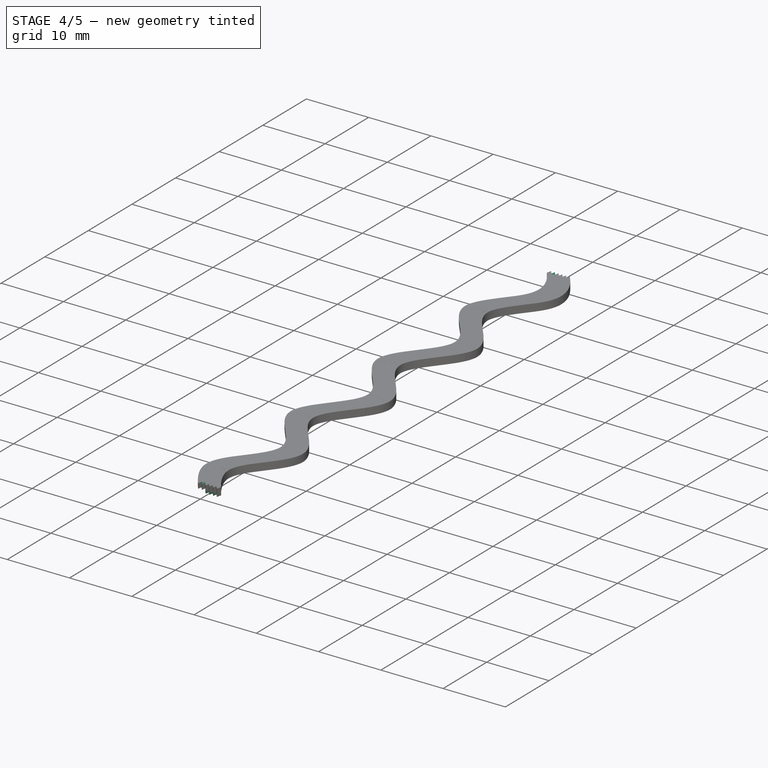
[diagram: stage 4 of 5 — iso view after this stage's code; geometry added in this stage tinted green]
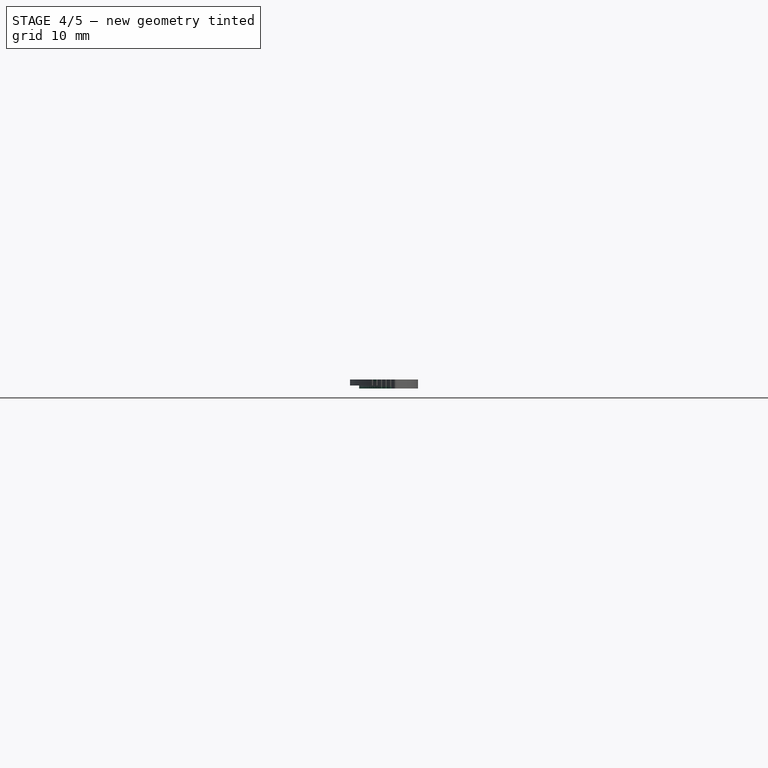
[diagram: stage 4 of 5 — front view after this stage's code; geometry added in this stage tinted green]
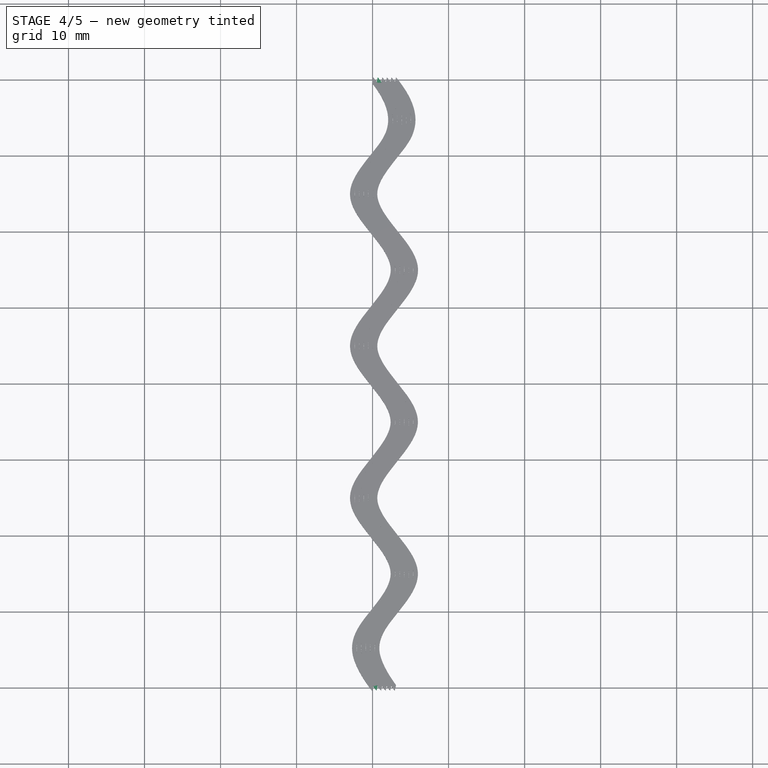
[diagram: stage 4 of 5 — top view after this stage's code; geometry added in this stage tinted green]
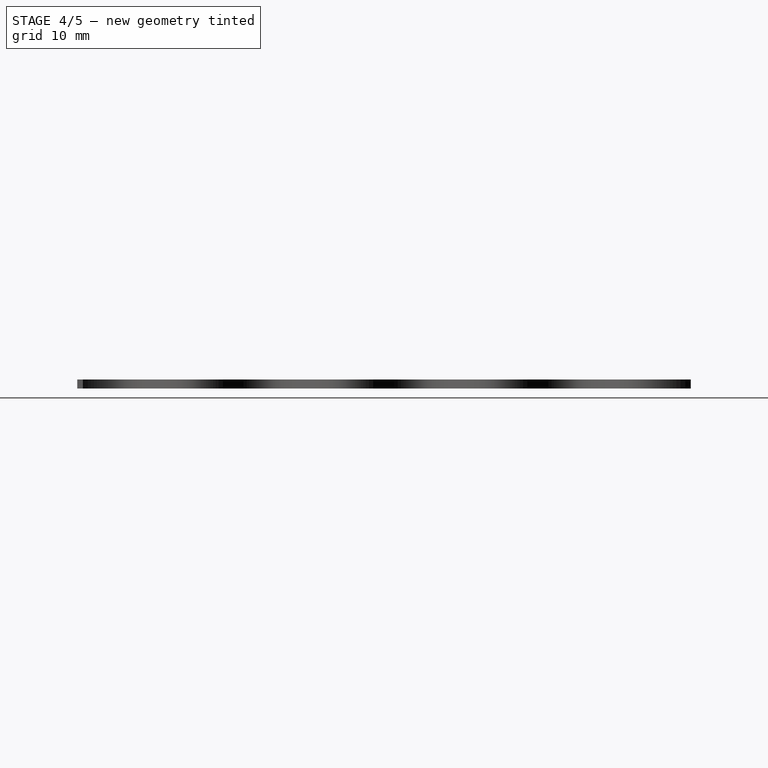
[diagram: stage 4 of 5 — right view after this stage's code; geometry added in this stage tinted green]
FEATURE [Sketcher::SketchObject] Sketch007  label="Sigmoid002"
  FullyConstrained = false
  Placement = pos=(0,30,0) rot=(0,0,1;0rad)
  sketch-geometry (35):
    g0-g17: Circle x18 (B-spline internal-alignment scaffolding for g18; pole/knot coordinates omitted)
    g18: BSplineCurve PolesCount=18 KnotsCount=16 Degree=3 IsPeriodic=0
    g19-g34: GeomPoint x16 (B-spline internal-alignment scaffolding for g18; pole/knot coordinates omitted)
  constraints (29):
    c: PointOnObject(g18,g-2)
    c: Weight(g0) = 1
    c: Equal(g0,g1)
    c: Equal(g0,g2)
    c: PointOnObject(g2,g-2)
    c: Equal(g0,g3)
    c: Equal(g0,g4)
    c: PointOnObject(g4,g-2)
    c: Equal(g0,g5)
    c: Equal(g0,g6)
    c: PointOnObject(g6,g-2)
    c: Equal(g0,g7)
    c: Equal(g0,g8)
    c: PointOnObject(g8,g-2)
    c: Equal(g0,g9)
    c: Equal(g0,g10)
    c: Coincident(g10,g-1)
    c: Equal(g0,g11)
    c: Equal(g0,g12)
    c: PointOnObject(g12,g-2)
    c: Equal(g0,g13)
    c: Equal(g0,g14)
    c: PointOnObject(g14,g-2)
    c: Equal(g0,g15)
    c: Equal(g0,g16)
    c: PointOnObject(g16,g-2)
    c: Equal(g0,g17)
    c: InternalAlignment(g0-g17 -> g18) x18
    c: InternalAlignment(g19-g34 -> g18) x16
FEATURE [Sketcher::SketchObject] Sketch006
  FullyConstrained = false
  MapMode = 3
  Placement = pos=(0,30,0) rot=(1,0,0;1.5708rad)
  Support = -> [Sketch007]
  sketch-geometry (4):
    g0: LineSegment StartX=-0.368605 StartY=0.202548 StartZ=0 EndX=0.387788 EndY=0.202548 EndZ=0
    g1: LineSegment StartX=0.387788 StartY=0.202548 StartZ=0 EndX=0.387788 EndY=-0.196091 EndZ=0
    g2: LineSegment StartX=0.387788 StartY=-0.196091 StartZ=0 EndX=-0.368605 EndY=-0.196091 EndZ=0
    g3: LineSegment StartX=-0.368605 StartY=-0.196091 StartZ=0 EndX=-0.368605 EndY=0.202548 EndZ=0
  constraints (8):
    c: Coincident(g0,g1)
    c: Coincident(g1,g2)
    c: Coincident(g2,g3)
    c: Coincident(g3,g0)
    c: Horizontal(g0)
    c: Horizontal(g2)
    c: Vertical(g1)
    c: Vertical(g3)
FEATURE [Part::Sweep] Sweep002
  Frenet = false
  Placement = pos=(1.2,0,0) rot=(0,0,1;0rad)
  Sections = -> [Sketch006]
  Solid = true
  Spine = -> Sketch007
  Transition = 1
FEATURE [Sketcher::SketchObject] Sketch009  label="Sigmoid003"
  FullyConstrained = false
  Placement = pos=(0,30,0) rot=(0,0,1;0rad)
  sketch-geometry (35):
    g0-g17: Circle x18 (B-spline internal-alignment scaffolding for g18; pole/knot coordinates omitted)
    g18: BSplineCurve PolesCount=18 KnotsCount=16 Degree=3 IsPeriodic=0
    g19-g34: GeomPoint x16 (B-spline internal-alignment scaffolding for g18; pole/knot coordinates omitted)
  constraints (29):
    c: PointOnObject(g18,g-2)
    c: Weight(g0) = 1
    c: Equal(g0,g1)
    c: Equal(g0,g2)
    c: PointOnObject(g2,g-2)
    c: Equal(g0,g3)
    c: Equal(g0,g4)
    c: PointOnObject(g4,g-2)
    c: Equal(g0,g5)
    c: Equal(g0,g6)
    c: PointOnObject(g6,g-2)
    c: Equal(g0,g7)
    c: Equal(g0,g8)
    c: PointOnObject(g8,g-2)
    c: Equal(g0,g9)
    c: Equal(g0,g10)
    c: Coincident(g10,g-1)
    c: Equal(g0,g11)
    c: Equal(g0,g12)
    c: PointOnObject(g12,g-2)
    c: Equal(g0,g13)
    c: Equal(g0,g14)
    c: PointOnObject(g14,g-2)
    c: Equal(g0,g15)
    c: Equal(g0,g16)
    c: PointOnObject(g16,g-2)
    c: Equal(g0,g17)
    c: InternalAlignment(g0-g17 -> g18) x18
    c: InternalAlignment(g19-g34 -> g18) x16
FEATURE [Sketcher::SketchObject] Sketch008
  FullyConstrained = false
  MapMode = 3
  Placement = pos=(0,30,0) rot=(1,0,0;1.5708rad)
  Support = -> [Sketch009]
  sketch-geometry (4):
    g0: LineSegment StartX=-0.368605 StartY=0.202548 StartZ=0 EndX=0.387788 EndY=0.202548 EndZ=0
    g1: LineSegment StartX=0.387788 StartY=0.202548 StartZ=0 EndX=0.387788 EndY=-0.196091 EndZ=0
    g2: LineSegment StartX=0.387788 StartY=-0.196091 StartZ=0 EndX=-0.368605 EndY=-0.196091 EndZ=0
    g3: LineSegment StartX=-0.368605 StartY=-0.196091 StartZ=0 EndX=-0.368605 EndY=0.202548 EndZ=0
  constraints (8):
    c: Coincident(g0,g1)
    c: Coincident(g1,g2)
    c: Coincident(g2,g3)
    c: Coincident(g3,g0)
    c: Horizontal(g0)
    c: Horizontal(g2)
    c: Vertical(g1)
    c: Vertical(g3)
FEATURE [Part::Sweep] Sweep003
  Frenet = false
  Placement = pos=(1.8,0,0) rot=(0,0,1;0rad)
  Sections = -> [Sketch008]
  Solid = true
  Spine = -> Sketch009
  Transition = 1
FEATURE [Sketcher::SketchObject] Sketch011  label="Sigmoid004"
  FullyConstrained = false
  Placement = pos=(0,30,0) rot=(0,0,1;0rad)
  sketch-geometry (35):
    g0-g17: Circle x18 (B-spline internal-alignment scaffolding for g18; pole/knot coordinates omitted)
    g18: BSplineCurve PolesCount=18 KnotsCount=16 Degree=3 IsPeriodic=0
    g19-g34: GeomPoint x16 (B-spline internal-alignment scaffolding for g18; pole/knot coordinates omitted)
  constraints (29):
    c: PointOnObject(g18,g-2)
    c: Weight(g0) = 1
    c: Equal(g0,g1)
    c: Equal(g0,g2)
    c: PointOnObject(g2,g-2)
    c: Equal(g0,g3)
    c: Equal(g0,g4)
    c: PointOnObject(g4,g-2)
    c: Equal(g0,g5)
    c: Equal(g0,g6)
    c: PointOnObject(g6,g-2)
    c: Equal(g0,g7)
    c: Equal(g0,g8)
    c: PointOnObject(g8,g-2)
    c: Equal(g0,g9)
    c: Equal(g0,g10)
    c: Coincident(g10,g-1)
    c: Equal(g0,g11)
    c: Equal(g0,g12)
    c: PointOnObject(g12,g-2)
    c: Equal(g0,g13)
    c: Equal(g0,g14)
    c: PointOnObject(g14,g-2)
    c: Equal(g0,g15)
    c: Equal(g0,g16)
    c: PointOnObject(g16,g-2)
    c: Equal(g0,g17)
    c: InternalAlignment(g0-g17 -> g18) x18
    c: InternalAlignment(g19-g34 -> g18) x16
FEATURE [Sketcher::SketchObject] Sketch010
  FullyConstrained = false
  MapMode = 3
  Placement = pos=(0,30,0) rot=(1,0,0;1.5708rad)
  Support = -> [Sketch011]
  sketch-geometry (4):
    g0: LineSegment StartX=-0.368605 StartY=0.202548 StartZ=0 EndX=0.387788 EndY=0.202548 EndZ=0
    g1: LineSegment StartX=0.387788 StartY=0.202548 StartZ=0 EndX=0.387788 EndY=-0.196091 EndZ=0
    g2: LineSegment StartX=0.387788 StartY=-0.196091 StartZ=0 EndX=-0.368605 EndY=-0.196091 EndZ=0
    g3: LineSegment StartX=-0.368605 StartY=-0.196091 StartZ=0 EndX=-0.368605 EndY=0.202548 EndZ=0
  constraints (8):
    c: Coincident(g0,g1)
    c: Coincident(g1,g2)
    c: Coincident(g2,g3)
    c: Coincident(g3,g0)
    c: Horizontal(g0)
    c: Horizontal(g2)
    c: Vertical(g1)
    c: Vertical(g3)
FEATURE [Part::Sweep] Sweep004
  Frenet = false
  Placement = pos=(2.4,0,0) rot=(0,0,1;0rad)
  Sections = -> [Sketch010]
  Solid = true
  Spine = -> Sketch011
  Transition = 1
FEATURE [Part::Sweep] Sweep017
  Frenet = false
  Placement = pos=(0.6,0,0.8) rot=(0,0,1;0rad)
  Sections = -> [Sketch027]
  Solid = true
  Spine = -> Sketch028
  Transition = 1
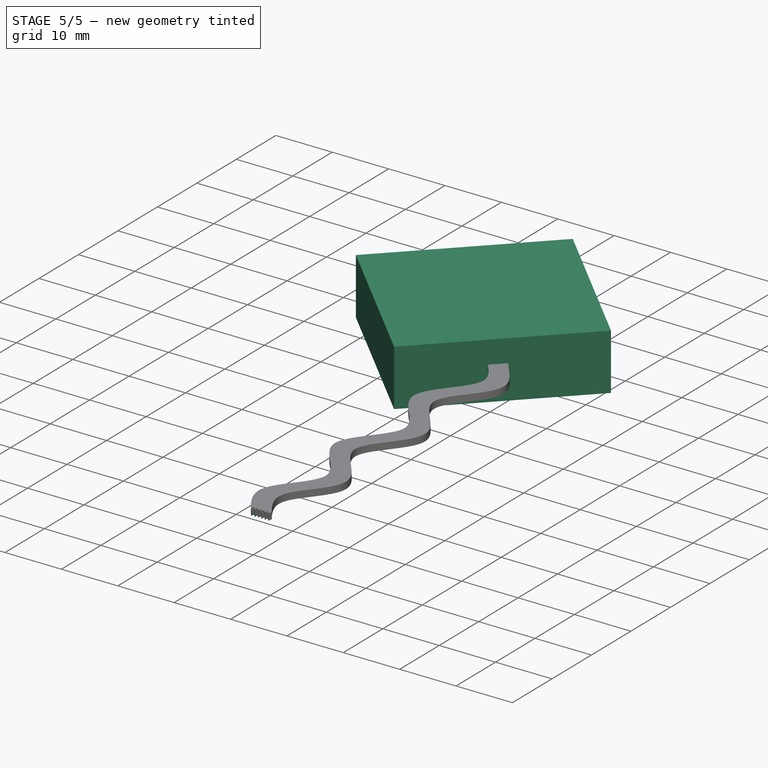
[diagram: stage 5 of 5 — iso view after this stage's code; geometry added in this stage tinted green]
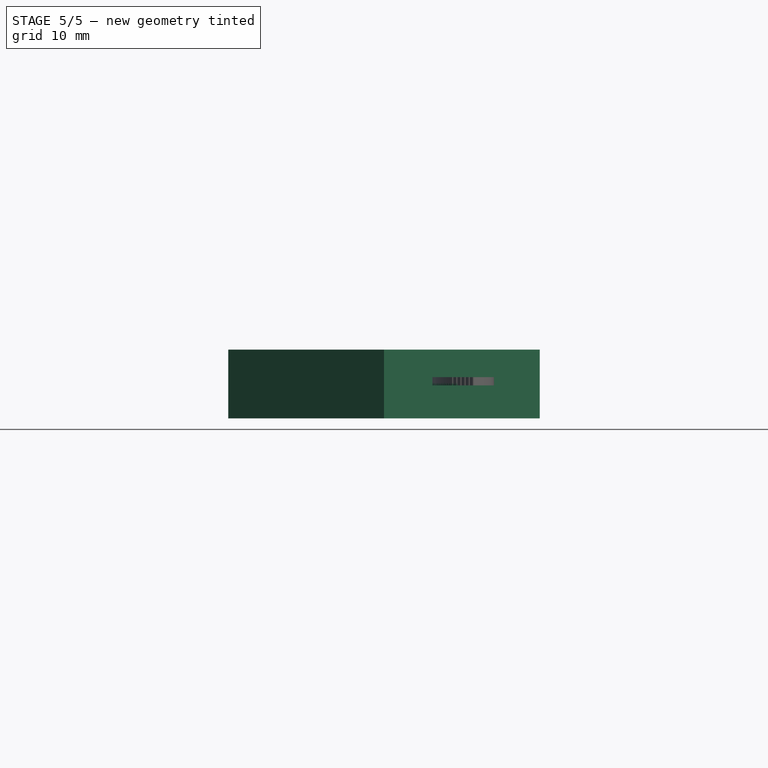
[diagram: stage 5 of 5 — front view after this stage's code; geometry added in this stage tinted green]
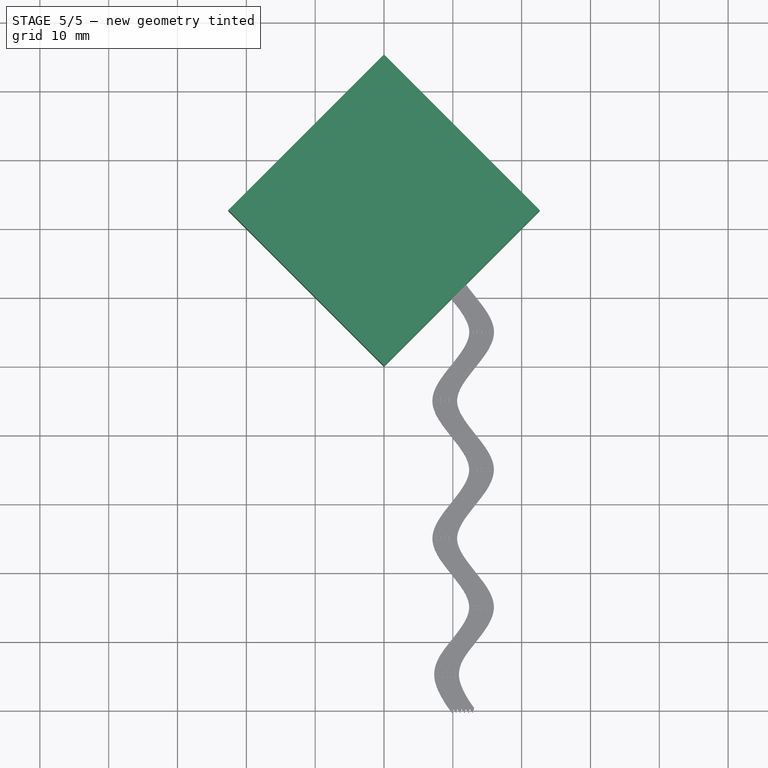
[diagram: stage 5 of 5 — top view after this stage's code; geometry added in this stage tinted green]
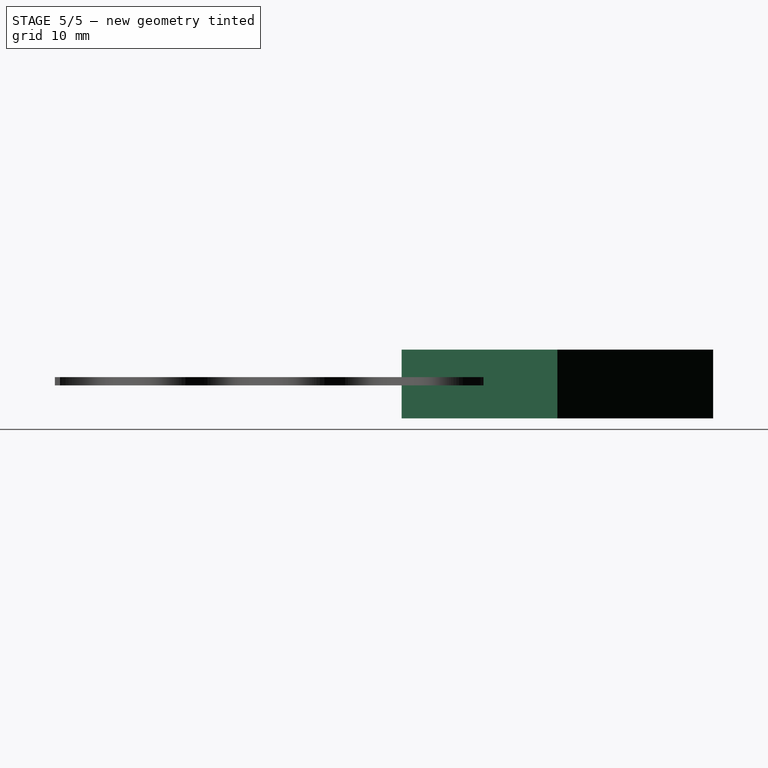
[diagram: stage 5 of 5 — right view after this stage's code; geometry added in this stage tinted green]
FEATURE [Sketcher::SketchObject] Sketch  label="Sigmoid"
  FullyConstrained = false
  Placement = pos=(0,30,0) rot=(0,0,1;0rad)
  sketch-geometry (35):
    g0-g17: Circle x18 (B-spline internal-alignment scaffolding for g18; pole/knot coordinates omitted)
    g18: BSplineCurve PolesCount=18 KnotsCount=16 Degree=3 IsPeriodic=0
    g19-g34: GeomPoint x16 (B-spline internal-alignment scaffolding for g18; pole/knot coordinates omitted)
  constraints (29):
    c: PointOnObject(g18,g-2)
    c: Weight(g0) = 1
    c: Equal(g0,g1)
    c: Equal(g0,g2)
    c: PointOnObject(g2,g-2)
    c: Equal(g0,g3)
    c: Equal(g0,g4)
    c: PointOnObject(g4,g-2)
    c: Equal(g0,g5)
    c: Equal(g0,g6)
    c: PointOnObject(g6,g-2)
    c: Equal(g0,g7)
    c: Equal(g0,g8)
    c: PointOnObject(g8,g-2)
    c: Equal(g0,g9)
    c: Equal(g0,g10)
    c: Coincident(g10,g-1)
    c: Equal(g0,g11)
    c: Equal(g0,g12)
    c: PointOnObject(g12,g-2)
    c: Equal(g0,g13)
    c: Equal(g0,g14)
    c: PointOnObject(g14,g-2)
    c: Equal(g0,g15)
    c: Equal(g0,g16)
    c: PointOnObject(g16,g-2)
    c: Equal(g0,g17)
    c: InternalAlignment(g0-g17 -> g18) x18
    c: InternalAlignment(g19-g34 -> g18) x16
FEATURE [Sketcher::SketchObject] Sketch003
  FullyConstrained = false
  MapMode = 3
  Placement = pos=(0,30,0) rot=(1,0,0;1.5708rad)
  Support = -> [Sketch]
  sketch-geometry (4):
    g0: LineSegment StartX=-0.368605 StartY=0.202548 StartZ=0 EndX=0.387788 EndY=0.202548 EndZ=0
    g1: LineSegment StartX=0.387788 StartY=0.202548 StartZ=0 EndX=0.387788 EndY=-0.196091 EndZ=0
    g2: LineSegment StartX=0.387788 StartY=-0.196091 StartZ=0 EndX=-0.368605 EndY=-0.196091 EndZ=0
    g3: LineSegment StartX=-0.368605 StartY=-0.196091 StartZ=0 EndX=-0.368605 EndY=0.202548 EndZ=0
  constraints (8):
    c: Coincident(g0,g1)
    c: Coincident(g1,g2)
    c: Coincident(g2,g3)
    c: Coincident(g3,g0)
    c: Horizontal(g0)
    c: Horizontal(g2)
    c: Vertical(g1)
    c: Vertical(g3)
FEATURE [Part::Sweep] Sweep
  Frenet = false
  Sections = -> [Sketch003]
  Solid = true
  Spine = -> Sketch
  Transition = 1
FEATURE [Sketcher::SketchObject] Sketch005  label="Sigmoid001"
  FullyConstrained = false
  Placement = pos=(0,30,0) rot=(0,0,1;0rad)
  sketch-geometry (35):
    g0-g17: Circle x18 (B-spline internal-alignment scaffolding for g18; pole/knot coordinates omitted)
    g18: BSplineCurve PolesCount=18 KnotsCount=16 Degree=3 IsPeriodic=0
    g19-g34: GeomPoint x16 (B-spline internal-alignment scaffolding for g18; pole/knot coordinates omitted)
  constraints (29):
    c: PointOnObject(g18,g-2)
    c: Weight(g0) = 1
    c: Equal(g0,g1)
    c: Equal(g0,g2)
    c: PointOnObject(g2,g-2)
    c: Equal(g0,g3)
    c: Equal(g0,g4)
    c: PointOnObject(g4,g-2)
    c: Equal(g0,g5)
    c: Equal(g0,g6)
    c: PointOnObject(g6,g-2)
    c: Equal(g0,g7)
    c: Equal(g0,g8)
    c: PointOnObject(g8,g-2)
    c: Equal(g0,g9)
    c: Equal(g0,g10)
    c: Coincident(g10,g-1)
    c: Equal(g0,g11)
    c: Equal(g0,g12)
    c: PointOnObject(g12,g-2)
    c: Equal(g0,g13)
    c: Equal(g0,g14)
    c: PointOnObject(g14,g-2)
    c: Equal(g0,g15)
    c: Equal(g0,g16)
    c: PointOnObject(g16,g-2)
    c: Equal(g0,g17)
    c: InternalAlignment(g0-g17 -> g18) x18
    c: InternalAlignment(g19-g34 -> g18) x16
FEATURE [Sketcher::SketchObject] Sketch004
  FullyConstrained = false
  MapMode = 3
  Placement = pos=(0,30,0) rot=(1,0,0;1.5708rad)
  Support = -> [Sketch005]
  sketch-geometry (4):
    g0: LineSegment StartX=-0.368605 StartY=0.202548 StartZ=0 EndX=0.387788 EndY=0.202548 EndZ=0
    g1: LineSegment StartX=0.387788 StartY=0.202548 StartZ=0 EndX=0.387788 EndY=-0.196091 EndZ=0
    g2: LineSegment StartX=0.387788 StartY=-0.196091 StartZ=0 EndX=-0.368605 EndY=-0.196091 EndZ=0
    g3: LineSegment StartX=-0.368605 StartY=-0.196091 StartZ=0 EndX=-0.368605 EndY=0.202548 EndZ=0
  constraints (8):
    c: Coincident(g0,g1)
    c: Coincident(g1,g2)
    c: Coincident(g2,g3)
    c: Coincident(g3,g0)
    c: Horizontal(g0)
    c: Horizontal(g2)
    c: Vertical(g1)
    c: Vertical(g3)
FEATURE [Part::Sweep] Sweep001
  Frenet = false
  Placement = pos=(0.6,0,0) rot=(0,0,1;0rad)
  Sections = -> [Sketch004]
  Solid = true
  Spine = -> Sketch005
  Transition = 1
FEATURE [Part::Refine] Sweep018
  Source = -> Sweep
FEATURE [Part::Refine] Sweep001001
  Source = -> Sweep001
FEATURE [Part::Refine] Sweep017001
  Source = -> Sweep017
FEATURE [Part::Refine] Sweep002001
  Source = -> Sweep002
FEATURE [Part::Refine] Sweep003001
  Source = -> Sweep003
FEATURE [Part::Refine] Sweep004001
  Source = -> Sweep004
FEATURE [Part::Refine] Sweep005001
  Source = -> Sweep005
FEATURE [Part::Refine] Sweep006001
  Source = -> Sweep006
FEATURE [Part::Refine] Sweep007001
  Source = -> Sweep007
FEATURE [Part::Refine] Sweep008001
  Source = -> Sweep008
FEATURE [Part::Refine] Sweep009001
  Source = -> Sweep009
FEATURE [Part::Refine] Sweep010001
  Source = -> Sweep010
FEATURE [Part::Refine] Sweep011001
  Source = -> Sweep011
FEATURE [Part::Refine] Sweep012001
  Source = -> Sweep012
FEATURE [Part::Refine] Sweep013001
  Source = -> Sweep013
FEATURE [Part::Refine] Sweep014001
  Source = -> Sweep014
FEATURE [Part::Refine] Sweep015001
  Source = -> Sweep015
FEATURE [Part::Refine] Sweep016001
  Source = -> Sweep016
FEATURE [Part::Box] Box  label="Cubo"
  AttacherType = Attacher::AttachEngine3D
  Height = 10
  Length = 32
  Placement = pos=(-10,50,-5) rot=(0,0,1;0.785398rad)
  Width = 32
FEATURE [Part::Compound] Compound
  Links = -> [Sweep018,Sweep001001,Sweep017001,Sweep002001,Sweep003001,Sweep004001,Sweep005001,Sweep006001,Sweep007001,Sweep008001,Sweep009001,Sweep010001,Sweep011001,Sweep012001,Sweep013001,Sweep014001,Sweep015001,Sweep016001]
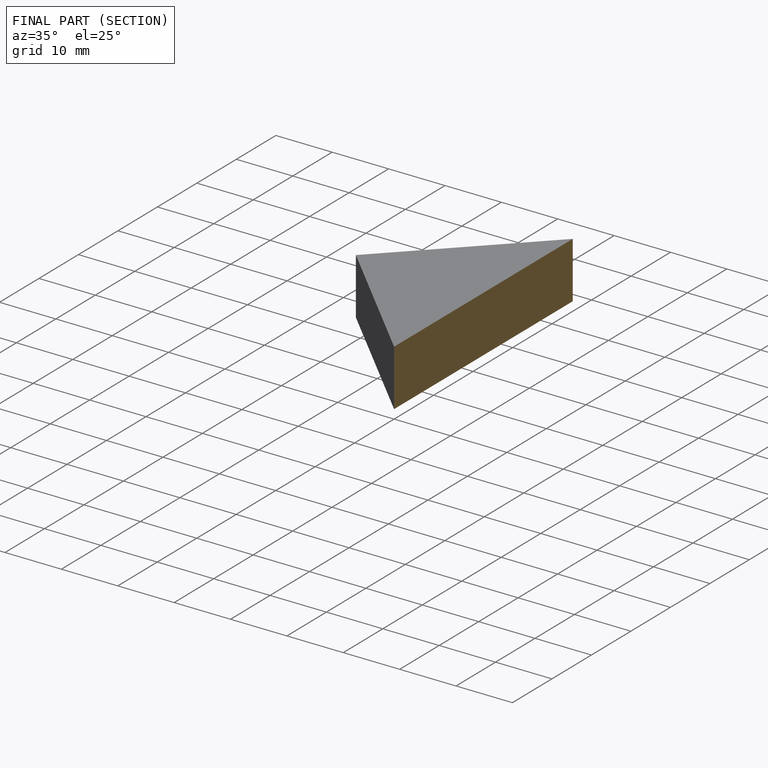
[diagram: finished part — half-section view (interior)]
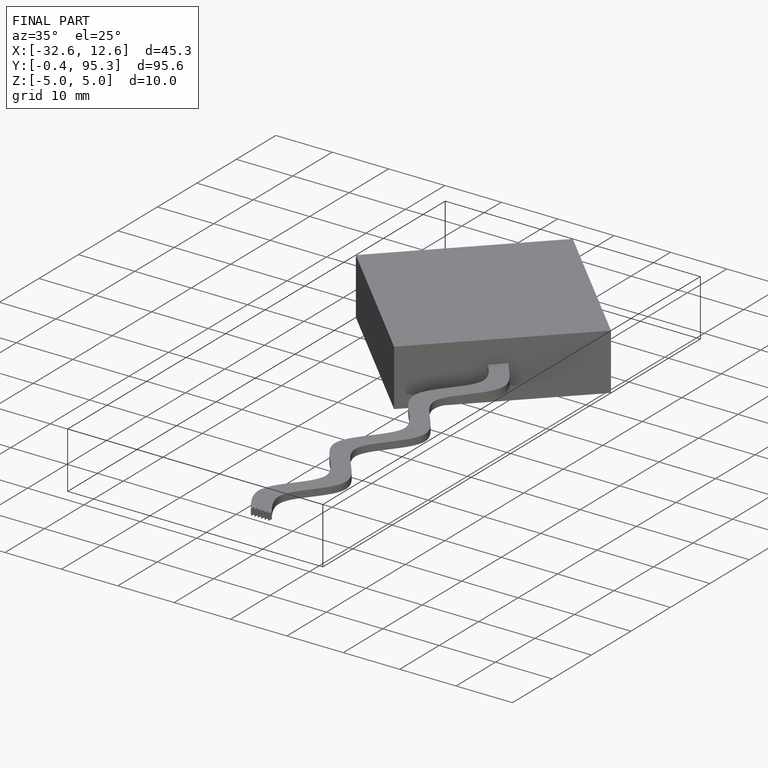
[diagram: finished part — iso view with bounding-box wireframe]
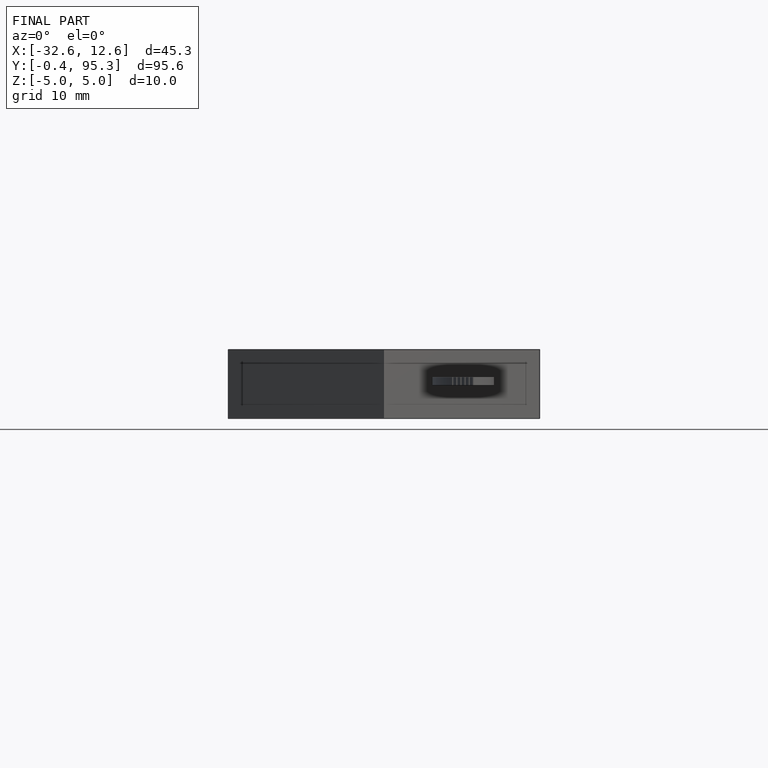
[diagram: finished part — front view with bounding-box wireframe]
